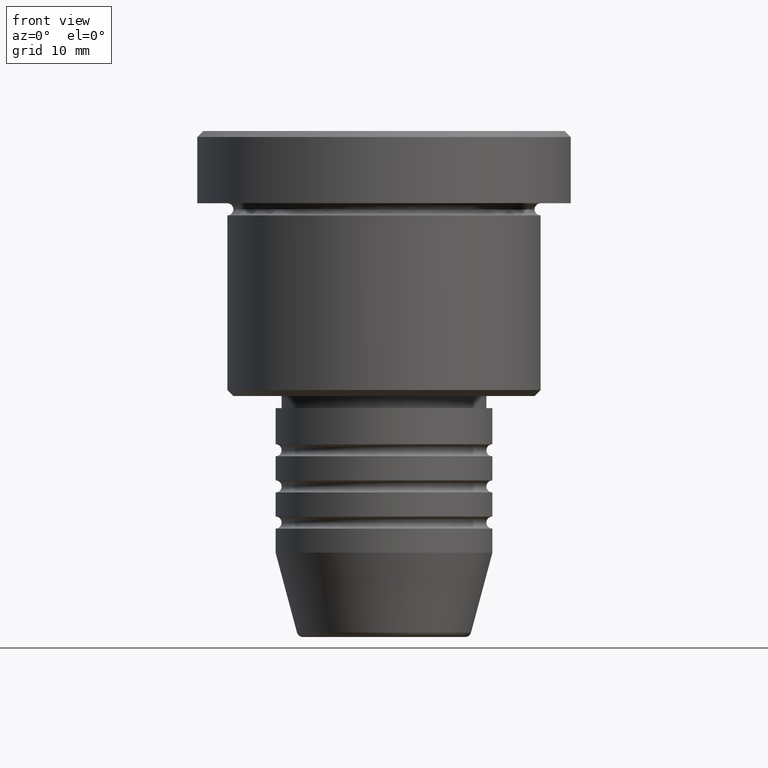
[diagram: clean part render]
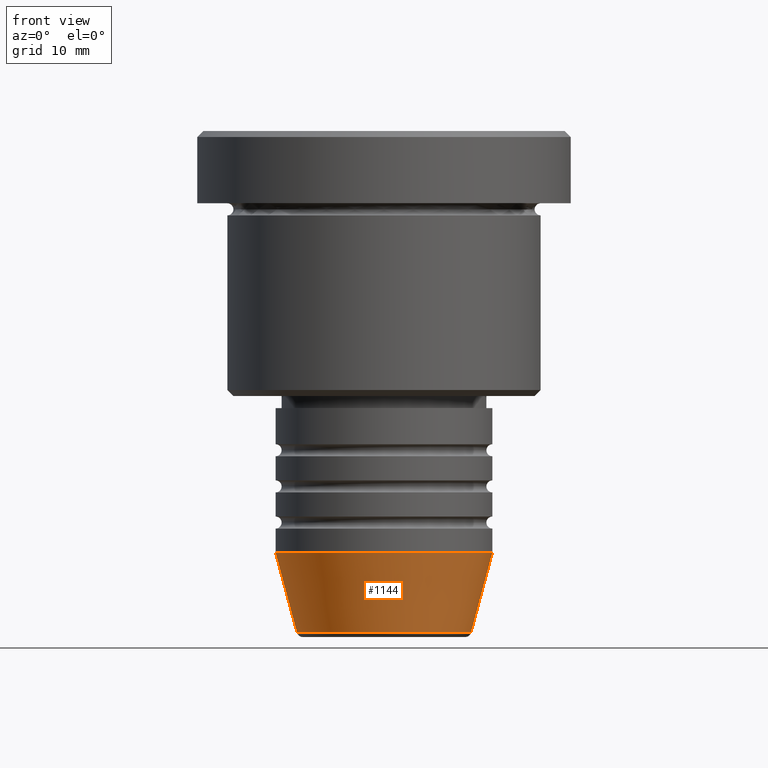
[diagram: same view with one face highlighted and labeled with its STEP entity id]
A machine part, front view. The second image highlights one B-rep face of the part: STEP entity #1144.
In plain terms, the highlighted conical surface has half-angle 15 deg.
Its self-contained STEP definition (entity closure, byte-faithful):
#20 = VERTEX_POINT ( 'NONE', #219 ) ;
#52 = DIRECTION ( 'NONE',  ( 1.000000000000000000, 0.000000000000000000, 0.000000000000000000 ) ) ;
#78 = VECTOR ( 'NONE', #359, 1000.000000000000000 ) ;
#100 = ORIENTED_EDGE ( 'NONE', *, *, #717, .T. ) ;
#121 = EDGE_CURVE ( 'NONE', #20, #446, #856, .T. ) ;
#145 = CARTESIAN_POINT ( 'NONE',  ( 0.000000000000000000, 0.000000000000000000, -34.99999999999999289 ) ) ;
#159 = ORIENTED_EDGE ( 'NONE', *, *, #1099, .T. ) ;
#219 = CARTESIAN_POINT ( 'NONE',  ( -9.000000000000000000, 1.102182119232617714E-15, -34.99999999999999289 ) ) ;
#249 = ORIENTED_EDGE ( 'NONE', *, *, #588, .F. ) ;
#267 = CARTESIAN_POINT ( 'NONE',  ( 0.000000000000000000, 0.000000000000000000, -41.62940952255125637 ) ) ;
#303 = DIRECTION ( 'NONE',  ( -0.2588190451025213501, 3.169619151431772337E-17, 0.9659258262890680902 ) ) ;
#338 = AXIS2_PLACEMENT_3D ( 'NONE', #810, #1181, #991 ) ;
#359 = DIRECTION ( 'NONE',  ( 0.2588190451025213501, 0.000000000000000000, 0.9659258262890680902 ) ) ;
#427 = LINE ( 'NONE', #1163, #78 ) ;
#432 = DIRECTION ( 'NONE',  ( -0.000000000000000000, -0.000000000000000000, 1.000000000000000000 ) ) ;
#444 = DIRECTION ( 'NONE',  ( 1.000000000000000000, 0.000000000000000000, 0.000000000000000000 ) ) ;
#446 = VERTEX_POINT ( 'NONE', #1031 ) ;
#455 = VECTOR ( 'NONE', #303, 1000.000000000000000 ) ;
#498 = CARTESIAN_POINT ( 'NONE',  ( 7.223655072137190380, 0.000000000000000000, -41.62940952255125637 ) ) ;
#567 = EDGE_LOOP ( 'NONE', ( #249, #100, #159, #679 ) ) ;
#588 = EDGE_CURVE ( 'NONE', #689, #20, #979, .T. ) ;
#679 = ORIENTED_EDGE ( 'NONE', *, *, #121, .F. ) ;
#689 = VERTEX_POINT ( 'NONE', #731 ) ;
#703 = FACE_OUTER_BOUND ( 'NONE', #567, .T. ) ;
#717 = EDGE_CURVE ( 'NONE', #689, #1024, #761, .T. ) ;
#731 = CARTESIAN_POINT ( 'NONE',  ( -7.223655072137191269, 9.934123627281767082E-16, -41.62940952255125637 ) ) ;
#761 = CIRCLE ( 'NONE', #880, 7.223655072137190380 ) ;
#810 = CARTESIAN_POINT ( 'NONE',  ( 0.000000000000000000, 0.000000000000000000, -34.99999999999999289 ) ) ;
#856 = CIRCLE ( 'NONE', #1014, 9.000000000000000000 ) ;
#873 = DIRECTION ( 'NONE',  ( -0.000000000000000000, -0.000000000000000000, 1.000000000000000000 ) ) ;
#880 = AXIS2_PLACEMENT_3D ( 'NONE', #267, #432, #444 ) ;
#954 = CONICAL_SURFACE ( 'NONE', #338, 9.000000000000000000, 0.2617993877991500740 ) ;
#979 = LINE ( 'NONE', #1160, #455 ) ;
#991 = DIRECTION ( 'NONE',  ( 1.000000000000000000, 0.000000000000000000, 0.000000000000000000 ) ) ;
#1014 = AXIS2_PLACEMENT_3D ( 'NONE', #145, #873, #52 ) ;
#1024 = VERTEX_POINT ( 'NONE', #498 ) ;
#1031 = CARTESIAN_POINT ( 'NONE',  ( 9.000000000000000000, 0.000000000000000000, -34.99999999999999289 ) ) ;
#1099 = EDGE_CURVE ( 'NONE', #1024, #446, #427, .T. ) ;
#1144 = ADVANCED_FACE ( 'NONE', ( #703 ), #954, .T. ) ;
#1160 = CARTESIAN_POINT ( 'NONE',  ( -9.000000000000000000, 1.102182119232617714E-15, -34.99999999999999289 ) ) ;
#1163 = CARTESIAN_POINT ( 'NONE',  ( 9.000000000000000000, 0.000000000000000000, -34.99999999999999289 ) ) ;
#1181 = DIRECTION ( 'NONE',  ( -0.000000000000000000, -0.000000000000000000, 1.000000000000000000 ) ) ;